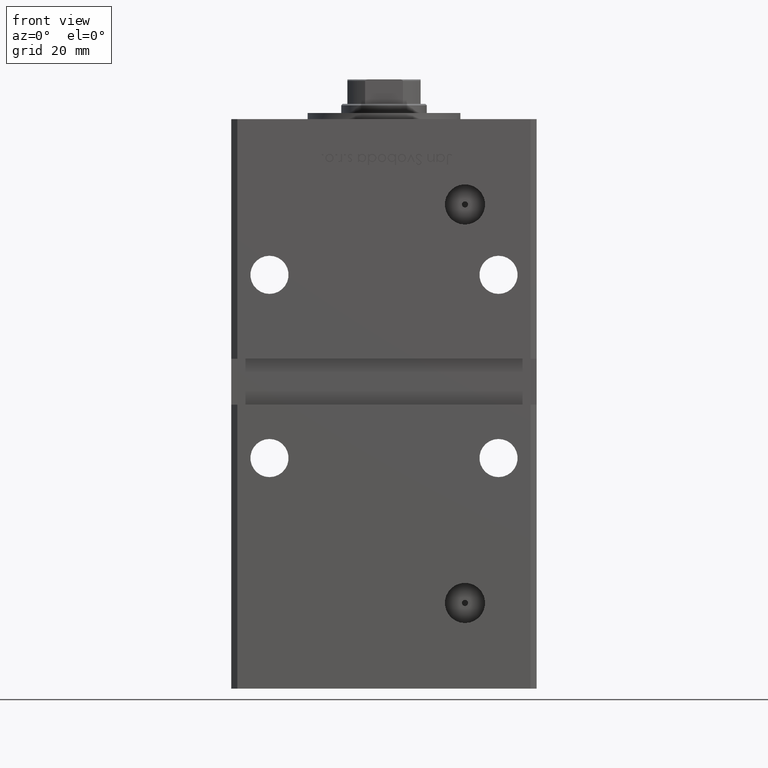
[diagram: clean part render]
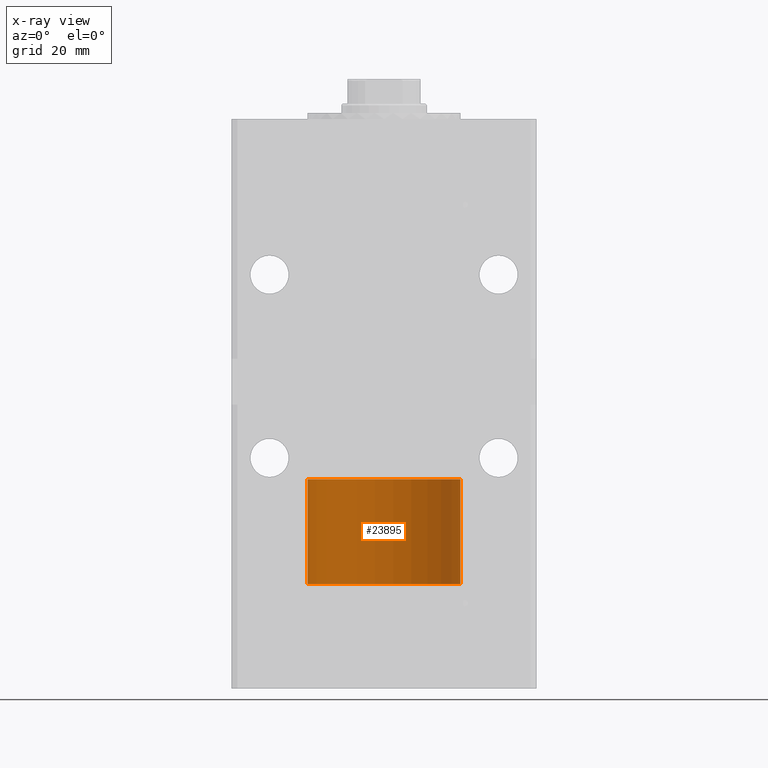
[diagram: x-ray — body ghosted, one internal face saturated and labeled with its STEP entity id]
A machine part, front view, then the same camera in x-ray: the body is ghosted and one INTERNAL B-rep face — a face not visible from any outside direction — is saturated and labeled: STEP entity #23895.
In plain terms, the highlighted cylindrical surface (partial cylindrical patch) has radius 25 mm, axis along (-0, -0, -1).
Its self-contained STEP definition (entity closure, byte-faithful):
#142 = EDGE_CURVE ( 'NONE', #8664, #34990, #5295, .T. ) ;
#548 = CARTESIAN_POINT ( 'NONE',  ( 0.000000000000000000, 0.000000000000000000, 0.000000000000000000 ) ) ;
#699 = CARTESIAN_POINT ( 'NONE',  ( 0.000000000000000000, 0.000000000000000000, 34.25000000000000000 ) ) ;
#5295 = CIRCLE ( 'NONE', #51697, 25.00000000000000000 ) ;
#6210 = EDGE_CURVE ( 'NONE', #34990, #41347, #41003, .T. ) ;
#7616 = EDGE_CURVE ( 'NONE', #8664, #45863, #43371, .T. ) ;
#8664 = VERTEX_POINT ( 'NONE', #34712 ) ;
#8764 = CYLINDRICAL_SURFACE ( 'NONE', #33443, 25.00000000000000000 ) ;
#9235 = CARTESIAN_POINT ( 'NONE',  ( -25.00000000000000000, 0.000000000000000000, 0.000000000000000000 ) ) ;
#9304 = DIRECTION ( 'NONE',  ( -1.000000000000000000, 0.000000000000000000, 0.000000000000000000 ) ) ;
#11577 = VECTOR ( 'NONE', #45162, 1000.000000000000000 ) ;
#12342 = CARTESIAN_POINT ( 'NONE',  ( 25.00000000000000000, 3.061616997868383043E-15, 34.25000000000000000 ) ) ;
#12927 = DIRECTION ( 'NONE',  ( 0.000000000000000000, 0.000000000000000000, 1.000000000000000000 ) ) ;
#14412 = CIRCLE ( 'NONE', #52242, 25.00000000000000000 ) ;
#15460 = DIRECTION ( 'NONE',  ( -0.000000000000000000, -0.000000000000000000, -1.000000000000000000 ) ) ;
#17119 = FACE_OUTER_BOUND ( 'NONE', #51601, .T. ) ;
#17233 = DIRECTION ( 'NONE',  ( 1.000000000000000000, 0.000000000000000000, 0.000000000000000000 ) ) ;
#17653 = DIRECTION ( 'NONE',  ( -0.000000000000000000, -0.000000000000000000, -1.000000000000000000 ) ) ;
#19507 = CARTESIAN_POINT ( 'NONE',  ( -25.00000000000000000, 0.000000000000000000, 34.25000000000000000 ) ) ;
#19596 = ORIENTED_EDGE ( 'NONE', *, *, #142, .F. ) ;
#19617 = EDGE_CURVE ( 'NONE', #45863, #41347, #14412, .T. ) ;
#23573 = ORIENTED_EDGE ( 'NONE', *, *, #6210, .F. ) ;
#23895 = ADVANCED_FACE ( 'NONE', ( #17119 ), #8764, .T. ) ;
#33443 = AXIS2_PLACEMENT_3D ( 'NONE', #699, #17653, #9304 ) ;
#34712 = CARTESIAN_POINT ( 'NONE',  ( 25.00000000000000000, 3.061616997868383043E-15, 34.25000000000000000 ) ) ;
#34990 = VERTEX_POINT ( 'NONE', #37343 ) ;
#35457 = CARTESIAN_POINT ( 'NONE',  ( 0.000000000000000000, 0.000000000000000000, 34.25000000000000000 ) ) ;
#36519 = DIRECTION ( 'NONE',  ( 1.000000000000000000, 0.000000000000000000, 0.000000000000000000 ) ) ;
#37343 = CARTESIAN_POINT ( 'NONE',  ( -25.00000000000000000, 0.000000000000000000, 34.25000000000000000 ) ) ;
#37454 = ORIENTED_EDGE ( 'NONE', *, *, #19617, .T. ) ;
#39518 = CARTESIAN_POINT ( 'NONE',  ( 25.00000000000000000, 3.061616997868383043E-15, 0.000000000000000000 ) ) ;
#39871 = VECTOR ( 'NONE', #15460, 1000.000000000000000 ) ;
#39919 = ORIENTED_EDGE ( 'NONE', *, *, #7616, .T. ) ;
#41003 = LINE ( 'NONE', #19507, #39871 ) ;
#41347 = VERTEX_POINT ( 'NONE', #9235 ) ;
#43371 = LINE ( 'NONE', #12342, #11577 ) ;
#45162 = DIRECTION ( 'NONE',  ( -0.000000000000000000, -0.000000000000000000, -1.000000000000000000 ) ) ;
#45863 = VERTEX_POINT ( 'NONE', #39518 ) ;
#51601 = EDGE_LOOP ( 'NONE', ( #19596, #39919, #37454, #23573 ) ) ;
#51697 = AXIS2_PLACEMENT_3D ( 'NONE', #35457, #52392, #36519 ) ;
#52242 = AXIS2_PLACEMENT_3D ( 'NONE', #548, #12927, #17233 ) ;
#52392 = DIRECTION ( 'NONE',  ( 0.000000000000000000, 0.000000000000000000, 1.000000000000000000 ) ) ;